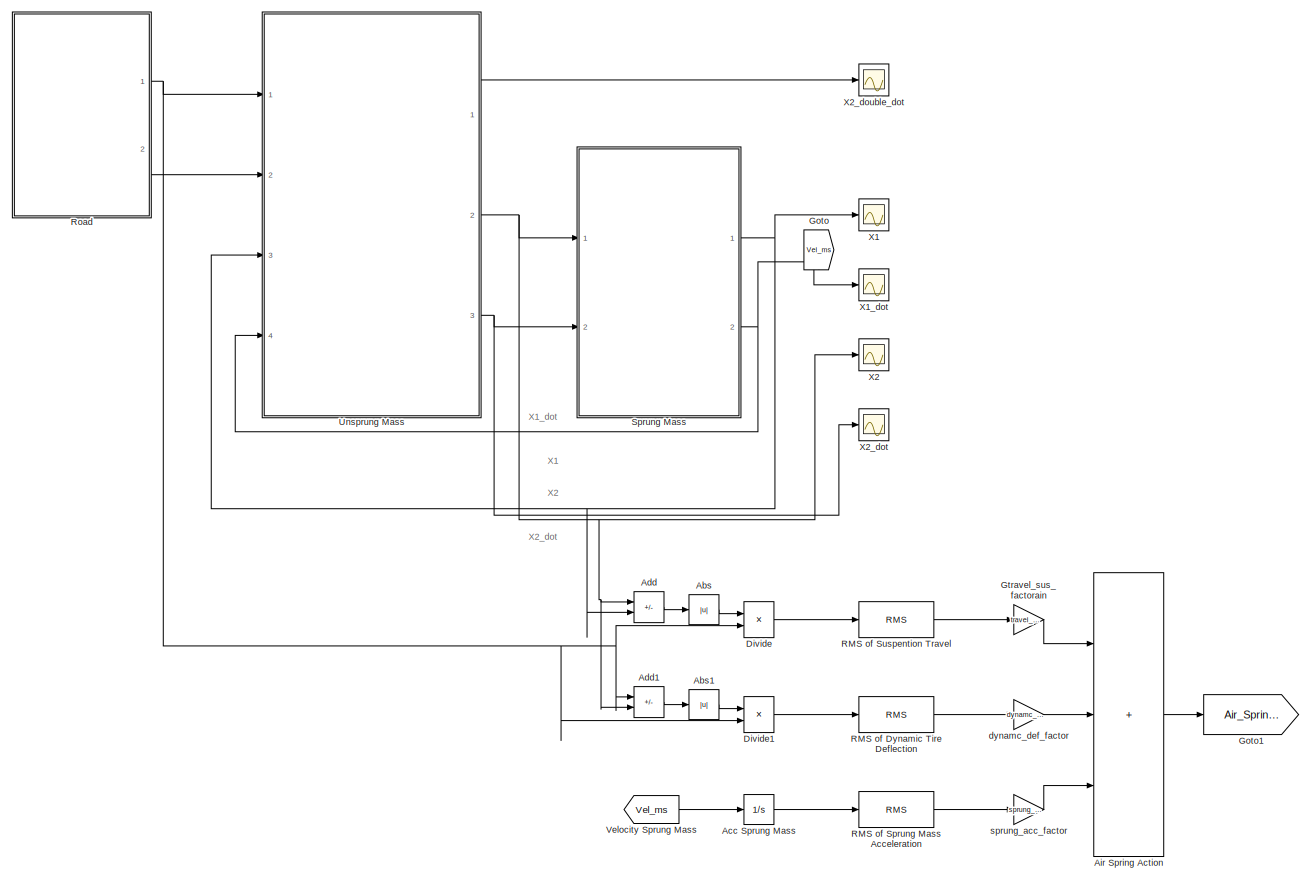
[diagram: root canvas - part 1/1, most of the canvas]
MODEL slx_fdac1cf9b1d6
KIND model
CONFIG AbsTol = auto
CONFIG EnableMultiTasking = off
CONFIG FixedStep = auto
CONFIG MaxStep = auto
CONFIG MinStep = auto
CONFIG RelTol = 1e-3
CONFIG SampleTimeConstraint = Unconstrained
CONFIG SolverName = VariableStepAuto
CONFIG StartTime = 0.0
CONFIG StopTime = 1
BLOCK [Abs] Abs
  SaturateOnIntegerOverflow = off
BLOCK [Abs] Abs1
  SaturateOnIntegerOverflow = off
BLOCK [Integrator] Acc Sprung Mass
  Ports = [1, 1]
BLOCK [Sum] Add
  IconShape = rectangular
  Inputs = +-
  Ports = [2, 1]
BLOCK [Sum] Add1
  IconShape = rectangular
  Inputs = +-
  Ports = [2, 1]
BLOCK [Sum] Air Spring Action
  IconShape = rectangular
  Inputs = +++
  Ports = [3, 1]
BLOCK [Product] Divide
  Inputs = */
  Ports = [2, 1]
BLOCK [Product] Divide1
  Inputs = */
  Ports = [2, 1]
BLOCK [Goto] Goto
  GotoTag = Vel_ms
  NameLocation = right
BLOCK [Goto] Goto1
  GotoTag = Air_Spring_Action
  TagVisibility = global
BLOCK [Gain] Gtravel_sus_factorain
  Gain = travel_sus_factor
BLOCK [Reference] RMS of Dynamic Tire Deflection  REF=dspstat3/RMS
  Ports = [1, 1]
  SourceBlock = dspstat3/RMS
  SourceProductBaseCode = DS
  SourceType = RMS
  UserDataPersistent = on
BLOCK [Reference] RMS of Sprung Mass Acceleration  REF=dspstat3/RMS
  Ports = [1, 1]
  SourceBlock = dspstat3/RMS
  SourceProductBaseCode = DS
  SourceType = RMS
  UserDataPersistent = on
BLOCK [Reference] RMS of Suspention Travel  REF=dspstat3/RMS
  Ports = [1, 1]
  SourceBlock = dspstat3/RMS
  SourceProductBaseCode = DS
  SourceType = RMS
  UserDataPersistent = on
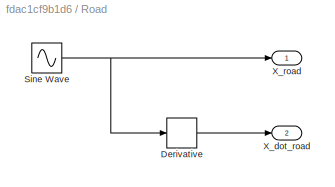
BLOCK [SubSystem] Road
  Ports = [0, 2]
  RequestExecContextInheritance = off
BLOCK [Derivative] Road/Derivative
BLOCK [Sin] Road/Sine Wave
  Amplitude = 0.02
  Bias = 1
  Frequency = 0.05
  Ports = [0, 1]
  SampleTime = 0
BLOCK [Outport] Road/X_dot_road
  Port = 2
BLOCK [Outport] Road/X_road
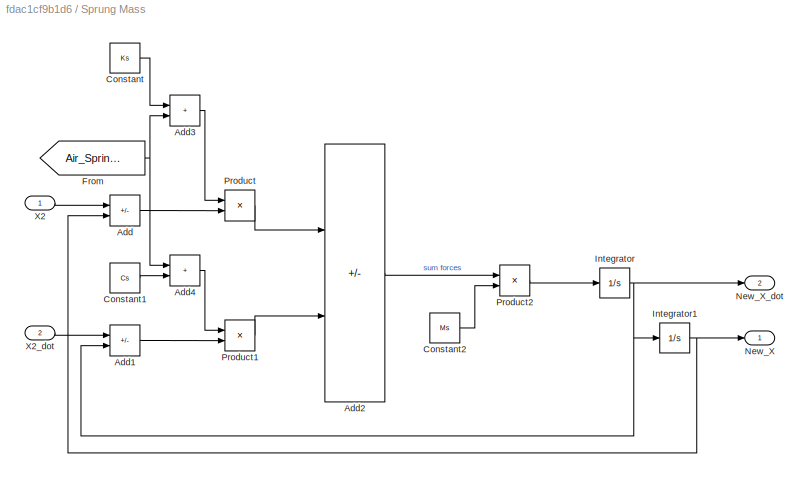
BLOCK [SubSystem] Sprung Mass
  Ports = [2, 2]
  RequestExecContextInheritance = off
BLOCK [Sum] Sprung Mass/Add
  IconShape = rectangular
  Inputs = -+
  Ports = [2, 1]
BLOCK [Sum] Sprung Mass/Add1
  IconShape = rectangular
  Inputs = -+
  Ports = [2, 1]
BLOCK [Sum] Sprung Mass/Add2
  IconShape = rectangular
  Inputs = --
  Ports = [2, 1]
BLOCK [Sum] Sprung Mass/Add3
  IconShape = rectangular
  Ports = [2, 1]
BLOCK [Sum] Sprung Mass/Add4
  IconShape = rectangular
  Ports = [2, 1]
BLOCK [Constant] Sprung Mass/Constant
  Value = Ks
BLOCK [Constant] Sprung Mass/Constant1
  Value = Cs
BLOCK [Constant] Sprung Mass/Constant2
  Value = Ms
BLOCK [From] Sprung Mass/From
  GotoTag = Air_Spring_Action
  TagVisibility = global
BLOCK [Integrator] Sprung Mass/Integrator
  Ports = [1, 1]
BLOCK [Integrator] Sprung Mass/Integrator1
  Ports = [1, 1]
BLOCK [Outport] Sprung Mass/New_X
BLOCK [Outport] Sprung Mass/New_X_dot
  Port = 2
BLOCK [Product] Sprung Mass/Product
  Ports = [2, 1]
BLOCK [Product] Sprung Mass/Product1
  Ports = [2, 1]
BLOCK [Product] Sprung Mass/Product2
  Inputs = */
  Ports = [2, 1]
BLOCK [Inport] Sprung Mass/X2
BLOCK [Inport] Sprung Mass/X2_dot
  Port = 2
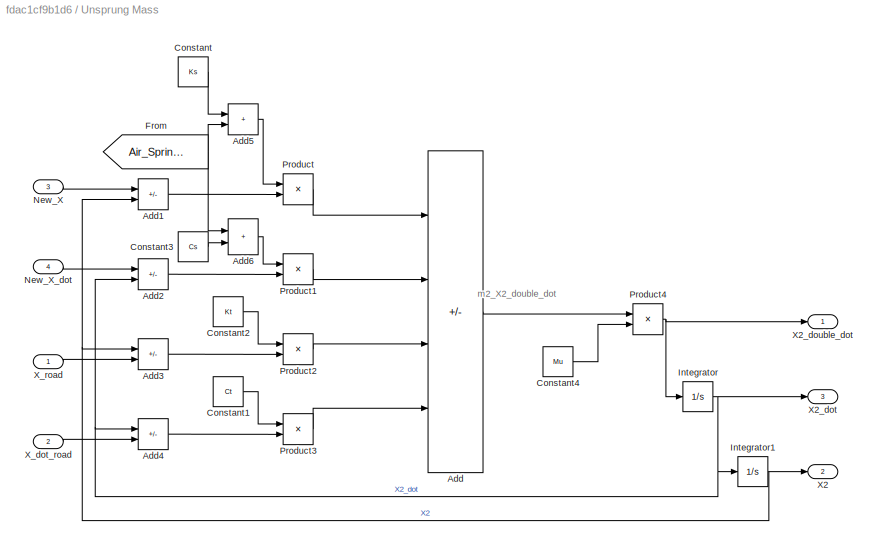
BLOCK [SubSystem] Unsprung Mass
  Ports = [4, 3]
  RequestExecContextInheritance = off
BLOCK [Sum] Unsprung Mass/Add
  IconShape = rectangular
  Inputs = ++--
  Ports = [4, 1]
BLOCK [Sum] Unsprung Mass/Add1
  IconShape = rectangular
  Inputs = +-
  Ports = [2, 1]
BLOCK [Sum] Unsprung Mass/Add2
  IconShape = rectangular
  Inputs = +-
  Ports = [2, 1]
BLOCK [Sum] Unsprung Mass/Add3
  IconShape = rectangular
  Inputs = +-
  Ports = [2, 1]
BLOCK [Sum] Unsprung Mass/Add4
  IconShape = rectangular
  Inputs = +-
  Ports = [2, 1]
BLOCK [Sum] Unsprung Mass/Add5
  IconShape = rectangular
  Ports = [2, 1]
BLOCK [Sum] Unsprung Mass/Add6
  IconShape = rectangular
  Ports = [2, 1]
BLOCK [Constant] Unsprung Mass/Constant
  Value = Ks
BLOCK [Constant] Unsprung Mass/Constant1
  Value = Ct
BLOCK [Constant] Unsprung Mass/Constant2
  Value = Kt
BLOCK [Constant] Unsprung Mass/Constant3
  Value = Cs
BLOCK [Constant] Unsprung Mass/Constant4
  Value = Mu
BLOCK [From] Unsprung Mass/From
  GotoTag = Air_Spring_Action
  TagVisibility = global
BLOCK [Integrator] Unsprung Mass/Integrator
  Ports = [1, 1]
BLOCK [Integrator] Unsprung Mass/Integrator1
  Ports = [1, 1]
BLOCK [Inport] Unsprung Mass/New_X
  Port = 3
BLOCK [Inport] Unsprung Mass/New_X_dot
  Port = 4
BLOCK [Product] Unsprung Mass/Product
  Ports = [2, 1]
BLOCK [Product] Unsprung Mass/Product1
  Ports = [2, 1]
BLOCK [Product] Unsprung Mass/Product2
  Ports = [2, 1]
BLOCK [Product] Unsprung Mass/Product3
  Ports = [2, 1]
BLOCK [Product] Unsprung Mass/Product4
  Inputs = */
  Ports = [2, 1]
BLOCK [Outport] Unsprung Mass/X2
  Port = 2
BLOCK [Outport] Unsprung Mass/X2_dot
  Port = 3
BLOCK [Outport] Unsprung Mass/X2_double_dot
BLOCK [Inport] Unsprung Mass/X_dot_road
  Port = 2
BLOCK [Inport] Unsprung Mass/X_road
BLOCK [From] Velocity Sprung Mass
  GotoTag = Vel_ms
BLOCK [Scope] X1
  Floating = off
  NumInputPorts = 1
  Ports = [1]
  ScopeSpecificationString = Simulink.scopes.TimeScopeBlockCfg('CurrentConfiguration', extmgr.ConfigurationSet(extmgr.Configuration('Core','General UI',true),extmgr.Configuration('Core','Source UI',true),extmgr.Configuration('Sources','WiredSimulink',true,'DataLoggingVariableName','ScopeData2'),extmgr.Configuration('Visuals','Time Domain',true,'SerializedDisplays',{struct('MinYLimReal','-0.24224','MaxYLimReal','2.18013','YLab...<+1396ch>
BLOCK [Scope] X1_dot
  Floating = off
  NumInputPorts = 1
  Ports = [1]
  ScopeSpecificationString = Simulink.scopes.TimeScopeBlockCfg('CurrentConfiguration', extmgr.ConfigurationSet(extmgr.Configuration('Core','General UI',true),extmgr.Configuration('Core','Source UI',true),extmgr.Configuration('Sources','WiredSimulink',true,'DataLoggingVariableName','ScopeData3'),extmgr.Configuration('Visuals','Time Domain',true,'SerializedDisplays',{struct('MinYLimReal','-6.02328','MaxYLimReal','6.35094','YLab...<+1372ch>
BLOCK [Scope] X2
  Floating = off
  NumInputPorts = 1
  Ports = [1]
  ScopeSpecificationString = Simulink.scopes.TimeScopeBlockCfg('CurrentConfiguration', extmgr.ConfigurationSet(extmgr.Configuration('Core','General UI',true),extmgr.Configuration('Core','Source UI',true),extmgr.Configuration('Sources','WiredSimulink',true,'DataLoggingVariableName','ScopeData1'),extmgr.Configuration('Visuals','Time Domain',true,'SerializedDisplays',{struct('MinYLimReal','-0.14141','MaxYLimReal','1.27271','YLab...<+1375ch>
BLOCK [Scope] X2_dot
  Floating = off
  NumInputPorts = 1
  Ports = [1]
  ScopeSpecificationString = Simulink.scopes.TimeScopeBlockCfg('CurrentConfiguration', extmgr.ConfigurationSet(extmgr.Configuration('Core','General UI',true),extmgr.Configuration('Core','Source UI',true),extmgr.Configuration('Sources','WiredSimulink',true,'DataLoggingVariableName','ScopeData4'),extmgr.Configuration('Visuals','Time Domain',true,'SerializedDisplays',{struct('MinYLimReal','-4.5377','MaxYLimReal','21.30604','YLab...<+1381ch>
BLOCK [Scope] X2_double_dot
  Floating = off
  NumInputPorts = 1
  Ports = [1]
  ScopeSpecificationString = Simulink.scopes.TimeScopeBlockCfg('CurrentConfiguration', extmgr.ConfigurationSet(extmgr.Configuration('Core','General UI',true),extmgr.Configuration('Core','Source UI',true),extmgr.Configuration('Sources','WiredSimulink',true),extmgr.Configuration('Visuals','Time Domain',true,'SerializedDisplays',{struct('MinYLimReal','-627.0079','MaxYLimReal','1805.82008','YLabelReal','','MinYLimMag',' 0.00000',...<+1351ch>
BLOCK [Gain] dynamc_def_factor
  Gain = dynamc_def_factor
BLOCK [Gain] sprung_acc_factor
  Gain = sprung_acc_factor
ANNOTATION (root): X1
ANNOTATION (root): X1_dot
ANNOTATION (root): X2
ANNOTATION (root): X2_dot
ANNOTATION Unsprung Mass: m2_X2_double_dot
LINE Abs1:1 -> Divide1:1
LINE Abs:1 -> Divide:1
LINE Acc Sprung Mass:1 -> RMS of Sprung Mass Acceleration:1
LINE Add1:1 -> Abs1:1
LINE Add:1 -> Abs:1
LINE Air Spring Action:1 -> Goto1:1
LINE Divide1:1 -> RMS of Dynamic Tire Deflection:1
LINE Divide:1 -> RMS of Suspention Travel:1
LINE Gtravel_sus_factorain:1 -> Air Spring Action:1
LINE RMS of Dynamic Tire Deflection:1 -> dynamc_def_factor:1
LINE RMS of Sprung Mass Acceleration:1 -> sprung_acc_factor:1
LINE RMS of Suspention Travel:1 -> Gtravel_sus_factorain:1
LINE Road/Derivative:1 -> Road/X_dot_road:1
NET Road/Sine Wave:1 -> Road/Derivative:1, Road/X_road:1
NET Road:1 -> Add1:1, Divide1:2, Divide:2, Unsprung Mass:1
LINE Road:2 -> Unsprung Mass:2
LINE Sprung Mass/Add1:1 -> Sprung Mass/Product1:2
LINE Sprung Mass/Add2:1 -> Sprung Mass/Product2:1
LINE Sprung Mass/Add3:1 -> Sprung Mass/Product:1
LINE Sprung Mass/Add4:1 -> Sprung Mass/Product1:1
LINE Sprung Mass/Add:1 -> Sprung Mass/Product:2
LINE Sprung Mass/Constant1:1 -> Sprung Mass/Add4:2
LINE Sprung Mass/Constant2:1 -> Sprung Mass/Product2:2
LINE Sprung Mass/Constant:1 -> Sprung Mass/Add3:1
NET Sprung Mass/From:1 -> Sprung Mass/Add3:2, Sprung Mass/Add4:1
NET Sprung Mass/Integrator1:1 -> Sprung Mass/Add:2, Sprung Mass/New_X:1
NET Sprung Mass/Integrator:1 -> Sprung Mass/Add1:2, Sprung Mass/Integrator1:1, Sprung Mass/New_X_dot:1
LINE Sprung Mass/Product1:1 -> Sprung Mass/Add2:2
LINE Sprung Mass/Product2:1 -> Sprung Mass/Integrator:1
LINE Sprung Mass/Product:1 -> Sprung Mass/Add2:1
LINE Sprung Mass/X2:1 -> Sprung Mass/Add:1
LINE Sprung Mass/X2_dot:1 -> Sprung Mass/Add1:1
NET Sprung Mass:1 -> Add:2, Unsprung Mass:3, X1:1
NET Sprung Mass:2 -> Goto:1, Unsprung Mass:4, X1_dot:1
LINE Unsprung Mass/Add1:1 -> Unsprung Mass/Product:2
LINE Unsprung Mass/Add2:1 -> Unsprung Mass/Product1:2
LINE Unsprung Mass/Add3:1 -> Unsprung Mass/Product2:2
LINE Unsprung Mass/Add4:1 -> Unsprung Mass/Product3:2
LINE Unsprung Mass/Add5:1 -> Unsprung Mass/Product:1
LINE Unsprung Mass/Add6:1 -> Unsprung Mass/Product1:1
LINE Unsprung Mass/Add:1 -> Unsprung Mass/Product4:1
LINE Unsprung Mass/Constant1:1 -> Unsprung Mass/Product3:1
LINE Unsprung Mass/Constant2:1 -> Unsprung Mass/Product2:1
LINE Unsprung Mass/Constant3:1 -> Unsprung Mass/Add6:2
LINE Unsprung Mass/Constant4:1 -> Unsprung Mass/Product4:2
LINE Unsprung Mass/Constant:1 -> Unsprung Mass/Add5:1
NET Unsprung Mass/From:1 -> Unsprung Mass/Add5:2, Unsprung Mass/Add6:1
NET Unsprung Mass/Integrator1:1 -> Unsprung Mass/Add1:2, Unsprung Mass/Add3:1, Unsprung Mass/X2:1
NET Unsprung Mass/Integrator:1 -> Unsprung Mass/Add2:2, Unsprung Mass/Add4:1, Unsprung Mass/Integrator1:1, Unsprung Mass/X2_dot:1
LINE Unsprung Mass/New_X:1 -> Unsprung Mass/Add1:1
LINE Unsprung Mass/New_X_dot:1 -> Unsprung Mass/Add2:1
LINE Unsprung Mass/Product1:1 -> Unsprung Mass/Add:2
LINE Unsprung Mass/Product2:1 -> Unsprung Mass/Add:3
LINE Unsprung Mass/Product3:1 -> Unsprung Mass/Add:4
NET Unsprung Mass/Product4:1 -> Unsprung Mass/Integrator:1, Unsprung Mass/X2_double_dot:1
LINE Unsprung Mass/Product:1 -> Unsprung Mass/Add:1
LINE Unsprung Mass/X_dot_road:1 -> Unsprung Mass/Add4:2
LINE Unsprung Mass/X_road:1 -> Unsprung Mass/Add3:2
LINE Unsprung Mass:1 -> X2_double_dot:1
NET Unsprung Mass:2 -> Add1:2, Add:1, Sprung Mass:1, X2:1
NET Unsprung Mass:3 -> Sprung Mass:2, X2_dot:1
LINE Velocity Sprung Mass:1 -> Acc Sprung Mass:1
LINE dynamc_def_factor:1 -> Air Spring Action:2
LINE sprung_acc_factor:1 -> Air Spring Action:3
note: NET lines group one-source signal fan-out (src -> all destinations, sorted); 1:1 wires keep LINE
